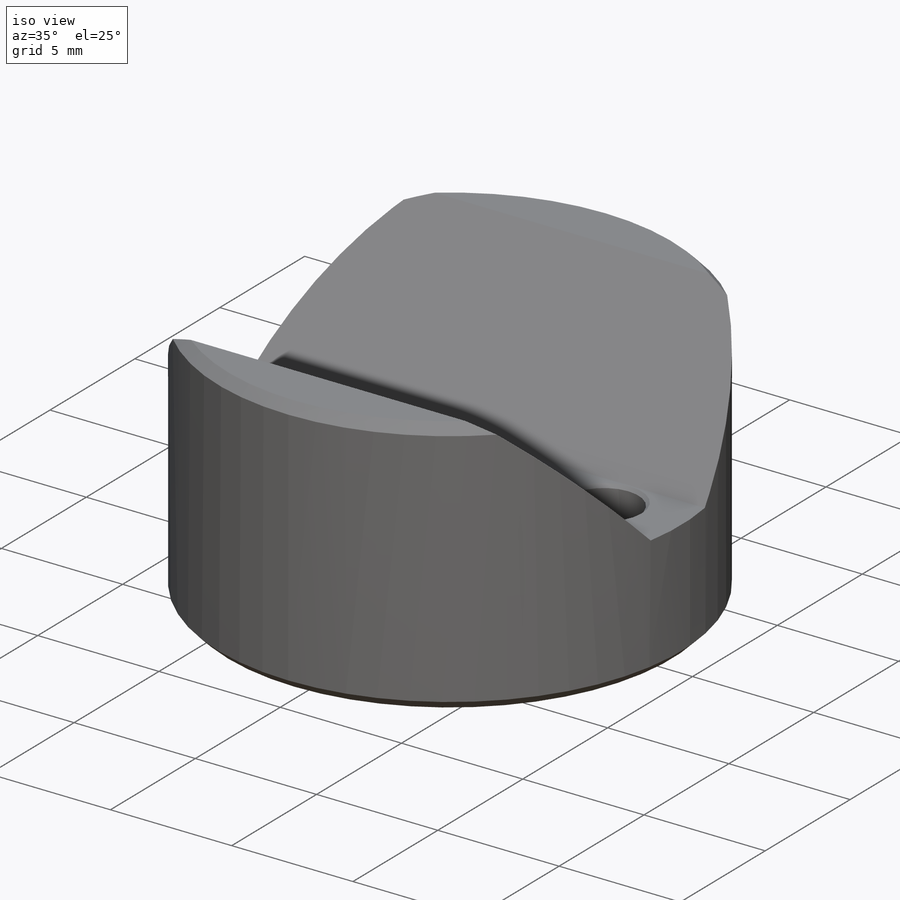
[diagram: iso view]
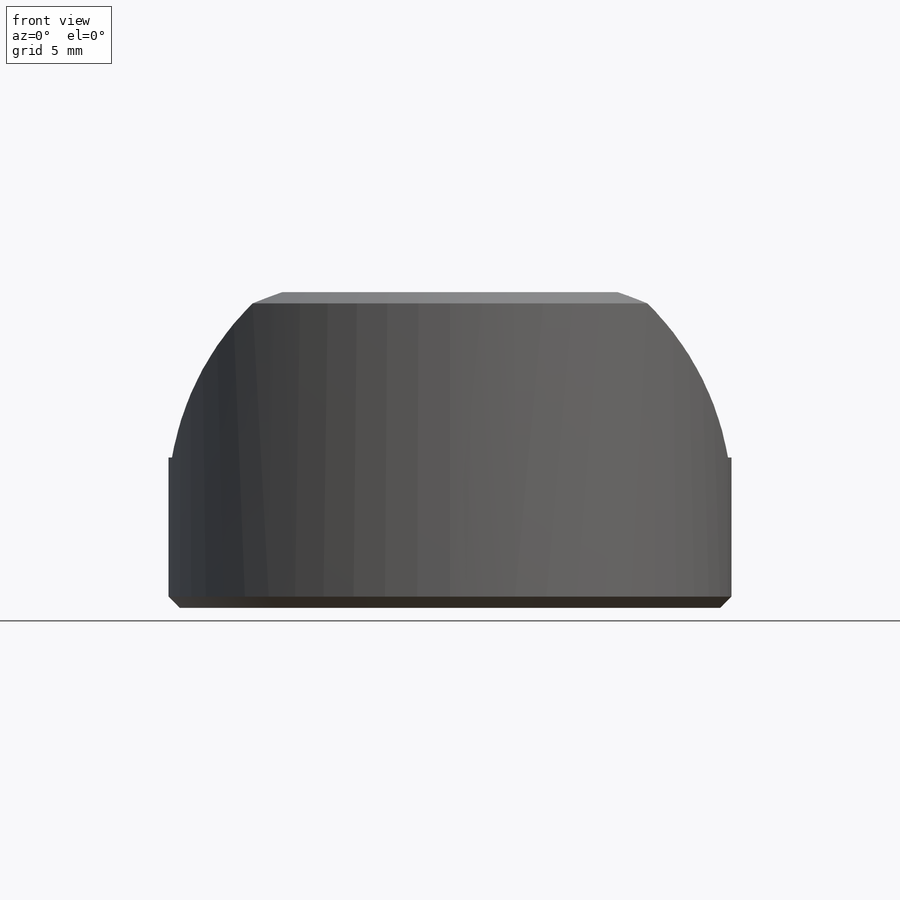
[diagram: front view]
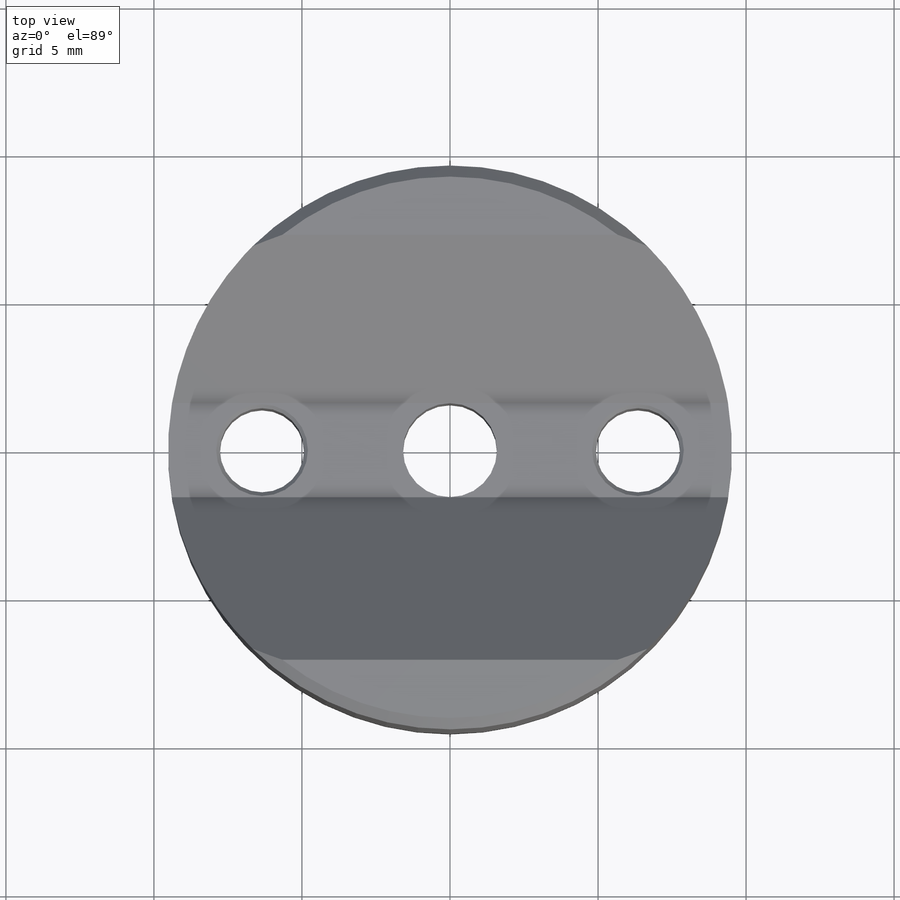
[diagram: top view]
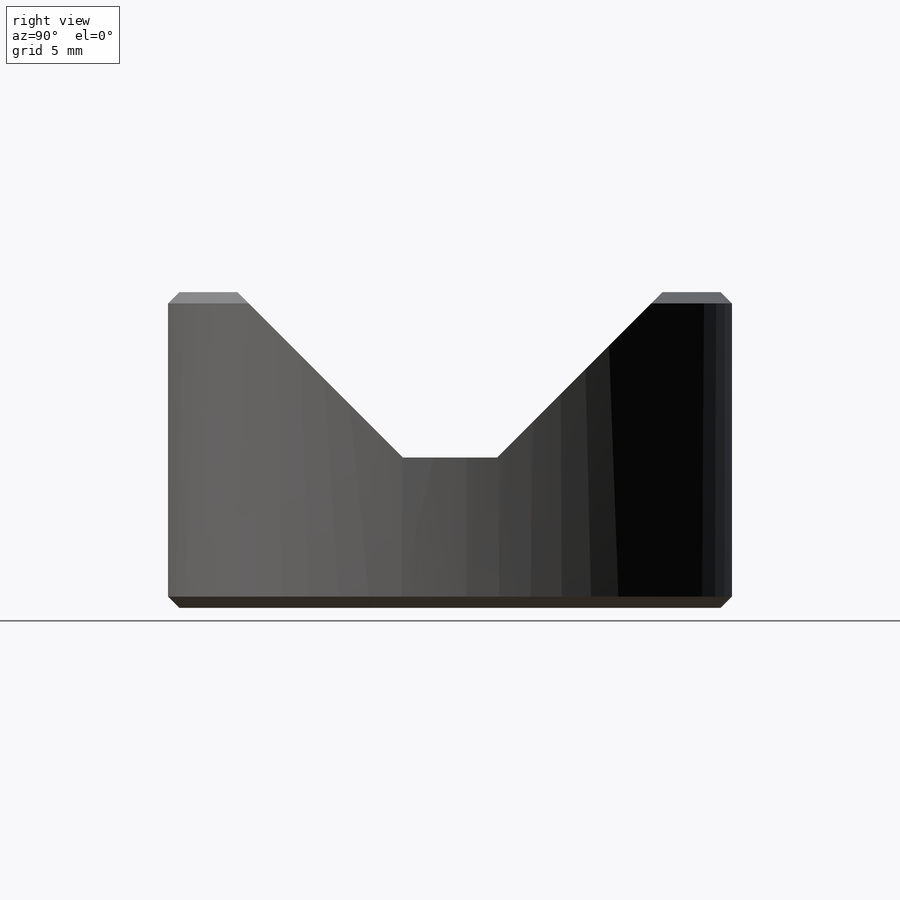
[diagram: right view]
SOLIDWORKS PART (.sldprt)
format: sldprt  version: not decoded by parser v0  size: 375,808 bytes
history: native  units: mm
features: plane x3, sketch x3, chamfer x3, cut_extrude x2, thread x2, material x1, revolve x1 + 2 further entries (+9 scaffold rows collapsed)
feature tree (26):
  scaffold x9  (default folders/planes/origin — collapsed)
  material  "440C Rc 58"
  plane  "Plane X-Y"
  plane  "Plane X-Z"
  plane  "Plane Y-Z"
  "Axis - Y"
  "Axis - Z"
  sketch  "Sketch9"  dims[c1.D1=10.668mm c1.D2=19.05mm c1.D3=12.446mm c1.D4=0.762mm c1.D5=0.762mm c2.D3=7.9756mm c2.D5=11.049mm c2.D6=~1.033705mm c3.D6=45.0deg c3.D5=5.5372mm c3.D3=7.9375mm c4.D5=~5.55625mm]
  revolve  "Revolve1"  Angle=360deg
  sketch  "Sketch3"  dims[c1.D5=9.525mm c1.D6=38.1mm c1.D7=12.7mm c1.D1=~14.359384mm c1.B=18.288mm c1.D=13.716mm c1.D2=5.08mm c1.D3=3.175mm c1.D4=~0.004192mm c2.D5=5.588mm c2.D6=14.986mm c2.D8=~18.818564mm c2.D3=5.588mm]
  cut_extrude  "Cut-Extrude1"  [1 undecoded]
  sketch  "Sketch10"  dims[D1=2.8448mm D3=3.175mm D2=12.7mm]
  cut_extrude  "Cut-Extrude2"  [1 undecoded]
  thread  "Cosmetic Thread3"  Diameter=5.08mm  [1 undecoded]
  thread  "Cosmetic Thread4"  Diameter=5.08mm  [1 undecoded]
  chamfer  "Chamfer1"  Distance=0.3302mm Angle=45deg
  chamfer  "Chamfer2"  Distance=0.381mm Angle=45deg
  chamfer  "Chamfer4"  Distance=0.127mm Angle=45deg
decode coverage: 9 of 11 modeling features carry decoded parameters; 2 rows unclassified (native names shown)
note: ~ marks probable driven/reference dimensions
note: 4 parameter values undecoded
note: suppression state not decoded; provenance and decode notes live in map.json
